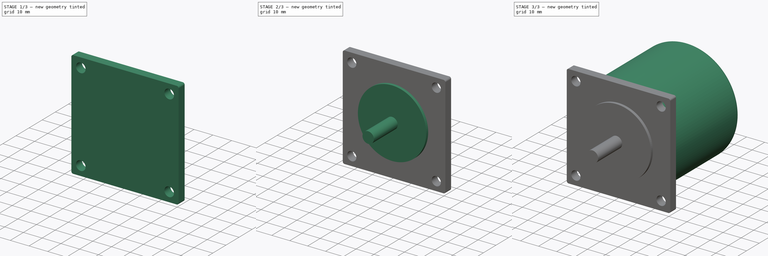
[diagram: build sequence overview — one tinted view per stage of 3, left to right]
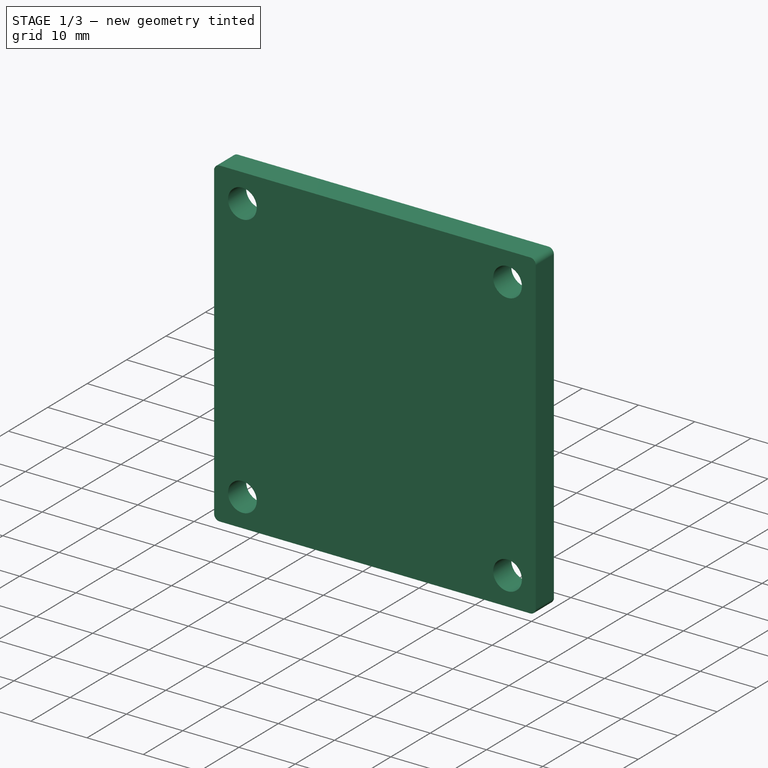
[diagram: stage 1 of 3 — iso view after this stage's code; geometry added in this stage tinted green]
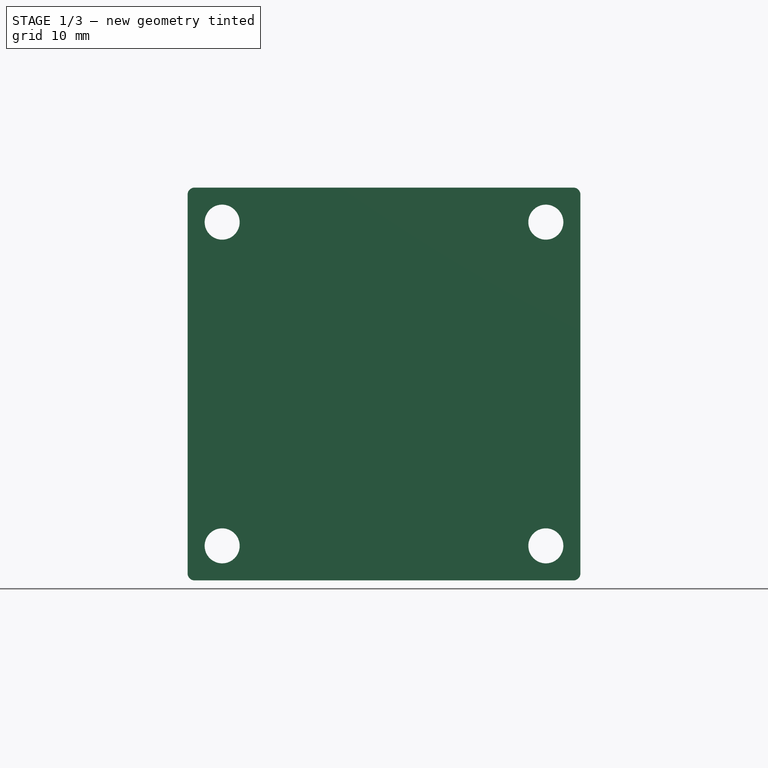
[diagram: stage 1 of 3 — front view after this stage's code; geometry added in this stage tinted green]
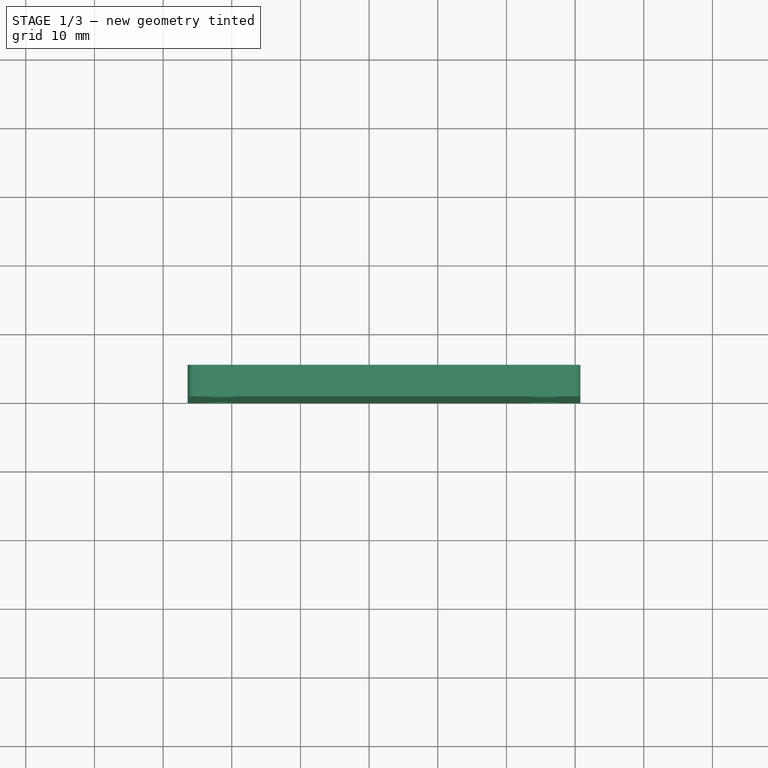
[diagram: stage 1 of 3 — top view after this stage's code; geometry added in this stage tinted green]
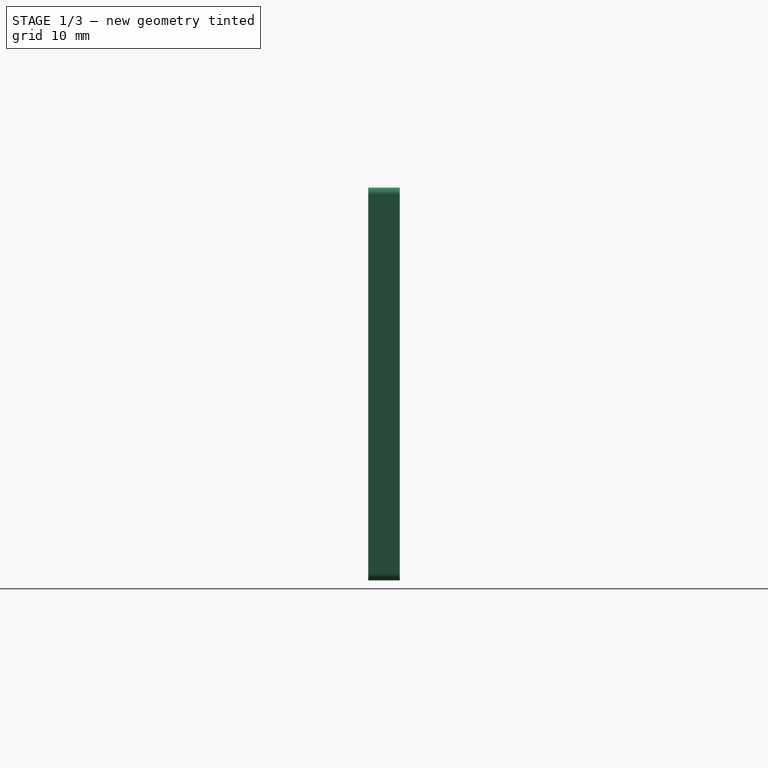
[diagram: stage 1 of 3 — right view after this stage's code; geometry added in this stage tinted green]
FCSTD DOCUMENT  (FreeCAD 0.15R3904 (Git))
Label: NEMA-23_Stepper_Motor
License: CC-BY 3.0
LicenseURL: http://creativecommons.org/licenses/by/3.0/
objects: Sketcher::SketchObject×5, PartDesign::Pad×4, Drawing::FeatureViewPart×3, PartDesign::Pocket×1, PartDesign::Fillet×1, App::DocumentObjectGroup×1, Drawing::FeaturePage×1
note: 16 computed .brp shape members not serialized (recipe doc carries the construction recipe); baked Part::Feature solids carry a one-line shape summary decoded from their .brp

FEATURE [Sketcher::SketchObject] Sketch
  Placement = pos=(1172.17,-95.4,57.8238) rot=(1,0,0;1.5708rad)
  sketch-geometry (8):
    g0: LineSegment StartX=-27.6 StartY=28.6 StartZ=0 EndX=27.6 EndY=28.6 EndZ=0
    g1: LineSegment StartX=28.6 StartY=27.6 StartZ=0 EndX=28.6 EndY=-27.6 EndZ=0
    g2: LineSegment StartX=27.6 StartY=-28.6 StartZ=0 EndX=-27.6 EndY=-28.6 EndZ=0
    g3: LineSegment StartX=-28.6 StartY=-27.6 StartZ=0 EndX=-28.6 EndY=27.6 EndZ=0
    g4: ArcOfCircle CenterX=27.6 CenterY=27.6 CenterZ=0 NormalX=0 NormalY=0 NormalZ=1 Radius=1 StartAngle=0 EndAngle=1.5708
    g5: ArcOfCircle CenterX=27.6 CenterY=-27.6 CenterZ=0 NormalX=0 NormalY=0 NormalZ=1 Radius=1 StartAngle=4.71239 EndAngle=6.28319
    g6: ArcOfCircle CenterX=-27.6 CenterY=-27.6 CenterZ=0 NormalX=0 NormalY=0 NormalZ=1 Radius=1 StartAngle=3.14159 EndAngle=4.71239
    g7: ArcOfCircle CenterX=-27.6 CenterY=27.6 CenterZ=0 NormalX=0 NormalY=0 NormalZ=1 Radius=1 StartAngle=1.5708 EndAngle=3.14159
  constraints (20):
    c: Horizontal(g0)
    c: Horizontal(g2)
    c: Vertical(g1)
    c: Vertical(g3)
    c: Tangent(g0,g4)
    c: Tangent(g1,g4)
    c: Tangent(g2,g5)
    c: Tangent(g1,g5)
    c: Tangent(g3,g6)
    c: Tangent(g2,g6)
    c: Tangent(g0,g7)
    c: Tangent(g3,g7)
    c: Equal(g4,g7)
    c: Equal(g7,g6)
    c: Equal(g6,g5)
    c: Radius(g4) = 1
    c: DistanceY(g0,g2) = -57.2
    c: DistanceX(g3,g1) = 57.2
    c: DistanceX(g-1,g3) = -28.6
    c: DistanceY(g-1,g2) = -28.6
FEATURE [PartDesign::Pad] Pad
  Length = 4.6
  Length2 = 100
  Placement = pos=(1172.17,-95.4,57.8238) rot=(1,0,0;1.5708rad)
  Sketch = -> Sketch
  Type = 0
FEATURE [Sketcher::SketchObject] Sketch001
  Placement = pos=(1172.17,-100,57.8238) rot=(1,0,0;1.5708rad)
  Support = -> Pad [Face10]
  sketch-geometry (4):
    g0: Circle CenterX=-23.57 CenterY=23.57 CenterZ=0 NormalX=0 NormalY=0 NormalZ=1 Radius=2.55
    g1: Circle CenterX=23.57 CenterY=23.57 CenterZ=0 NormalX=0 NormalY=0 NormalZ=1 Radius=2.55
    g2: Circle CenterX=-23.57 CenterY=-23.57 CenterZ=0 NormalX=0 NormalY=0 NormalZ=1 Radius=2.55
    g3: Circle CenterX=23.57 CenterY=-23.57 CenterZ=0 NormalX=0 NormalY=0 NormalZ=1 Radius=2.55
  constraints (12):
    c: Radius(g0) = 2.55
    c: Equal(g0,g2)
    c: Equal(g1,g3)
    c: DistanceY(g0,g2) = -47.14
    c: DistanceY(g3,g1) = 47.14
    c: DistanceX(g2,g3) = 47.14
    c: DistanceX(g0,g1) = 47.14
    c: DistanceX(g2,g0) = 0
    c: DistanceY(g3,g2) = 0
    c: DistanceX(g-1,g2) = -23.57
    c: DistanceY(g-1,g2) = -23.57
    c: Equal(g2,g3)
FEATURE [PartDesign::Pocket] Pocket
  Length = 5
  Placement = pos=(1172.17,-95.4,57.8238) rot=(1,0,0;1.5708rad)
  Sketch = -> Sketch001
  Type = 1
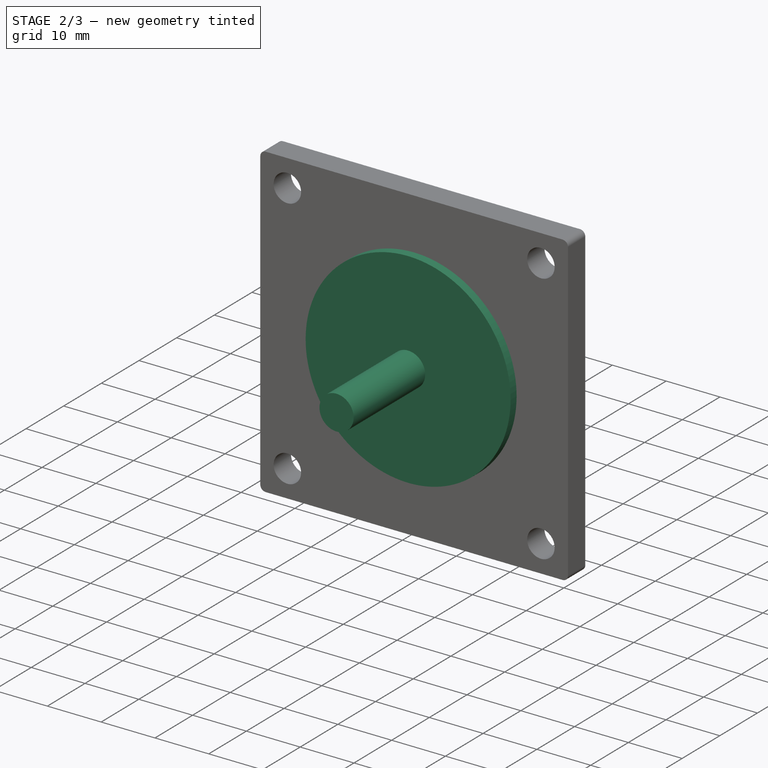
[diagram: stage 2 of 3 — iso view after this stage's code; geometry added in this stage tinted green]
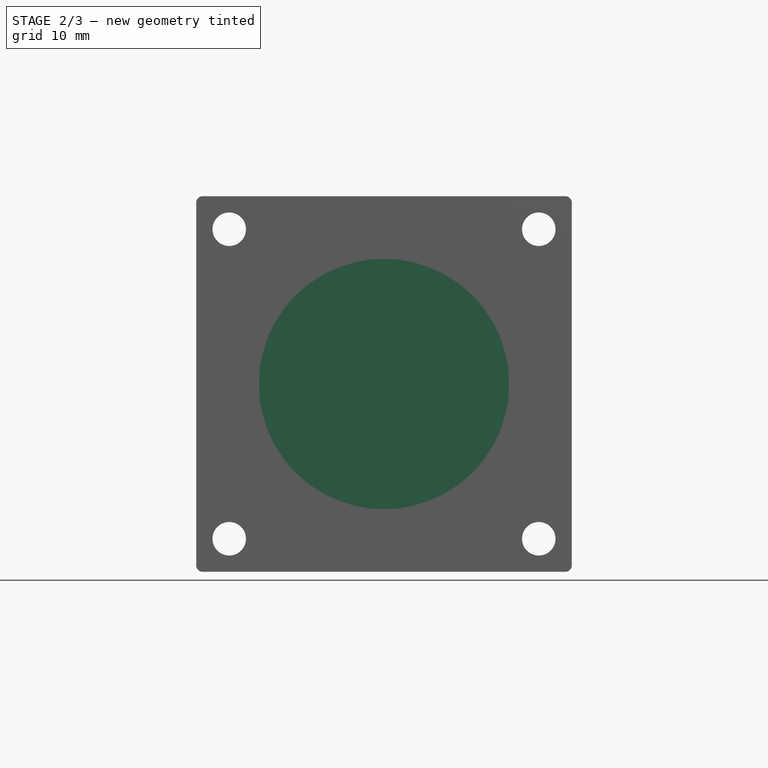
[diagram: stage 2 of 3 — front view after this stage's code; geometry added in this stage tinted green]
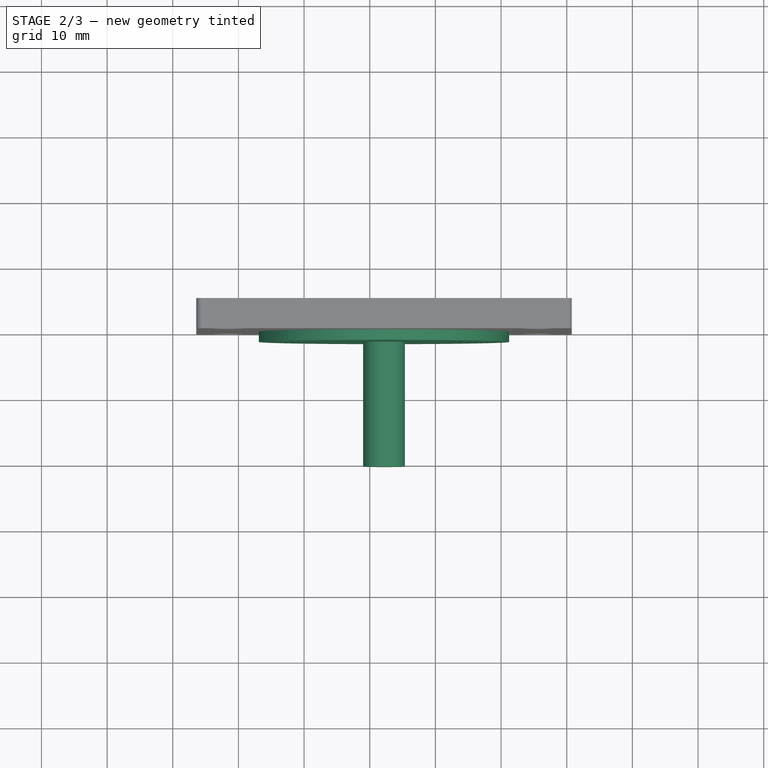
[diagram: stage 2 of 3 — top view after this stage's code; geometry added in this stage tinted green]
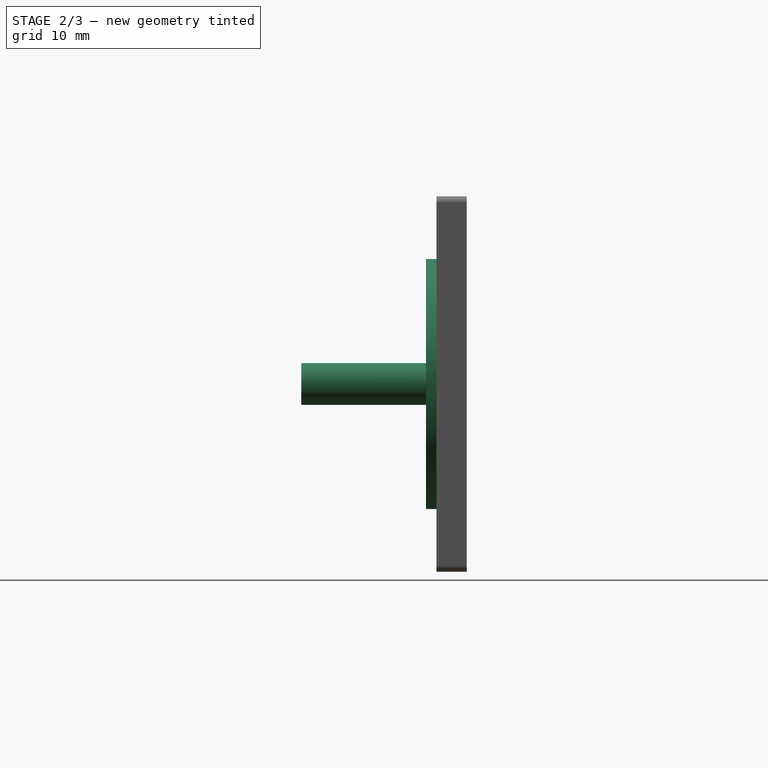
[diagram: stage 2 of 3 — right view after this stage's code; geometry added in this stage tinted green]
FEATURE [Sketcher::SketchObject] Sketch002
  Placement = pos=(1172.17,-100,57.8238) rot=(1,0,0;1.5708rad)
  Support = -> Pocket [Face5]
  sketch-geometry (1):
    g0: Circle CenterX=0 CenterY=0 CenterZ=0 NormalX=0 NormalY=0 NormalZ=1 Radius=19.05
  constraints (2):
    c: Coincident(g0,g-1)
    c: Radius(g0) = 19.05
FEATURE [PartDesign::Pad] Pad001
  Length = 1.6
  Length2 = 100
  Placement = pos=(1172.17,-95.4,57.8238) rot=(1,0,0;1.5708rad)
  Sketch = -> Sketch002
  Type = 0
FEATURE [Sketcher::SketchObject] Sketch003
  Placement = pos=(1172.17,-100,57.8238) rot=(1,0,0;1.5708rad)
  Support = -> Pad001 [Face5]
  sketch-geometry (1):
    g0: Circle CenterX=0 CenterY=0 CenterZ=0 NormalX=0 NormalY=0 NormalZ=1 Radius=3.175
  constraints (2):
    c: Coincident(g-1,g0)
    c: Radius(g0) = 3.175
FEATURE [PartDesign::Pad] Pad002
  Length = 20.6
  Length2 = 100
  Placement = pos=(1172.17,-95.4,57.8238) rot=(1,0,0;1.5708rad)
  Sketch = -> Sketch003
  Type = 0
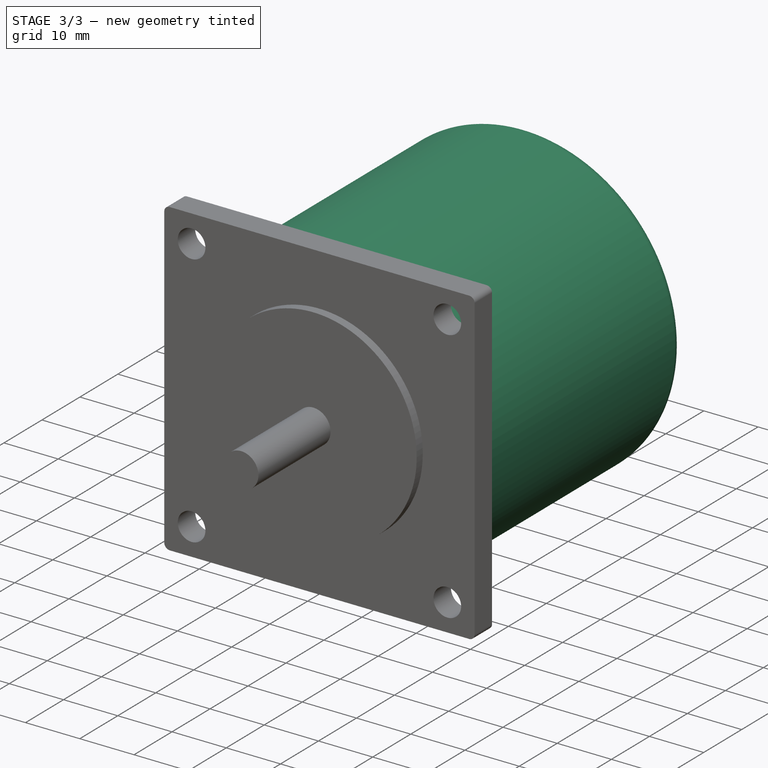
[diagram: stage 3 of 3 — iso view after this stage's code; geometry added in this stage tinted green]
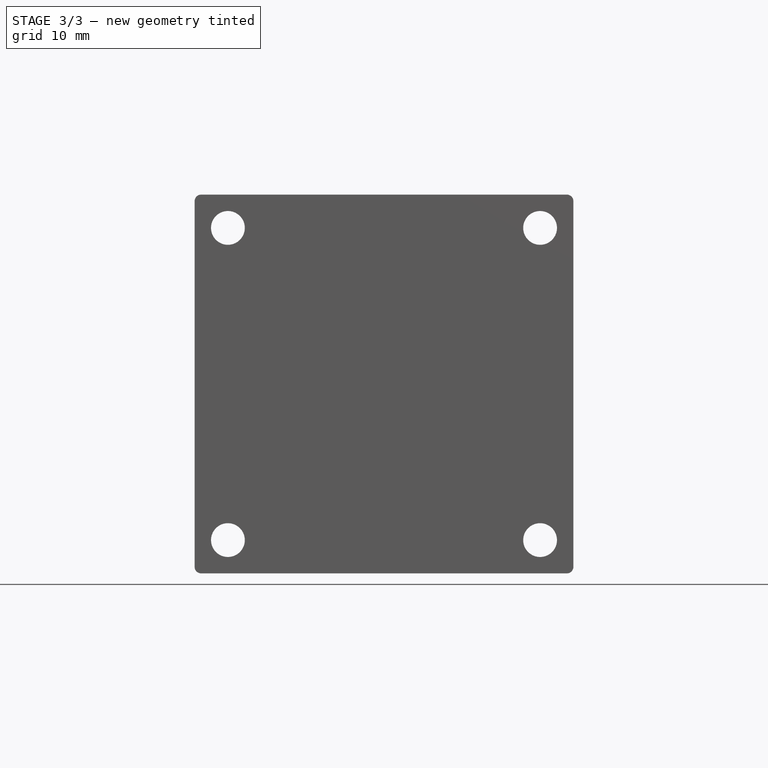
[diagram: stage 3 of 3 — front view after this stage's code; geometry added in this stage tinted green]
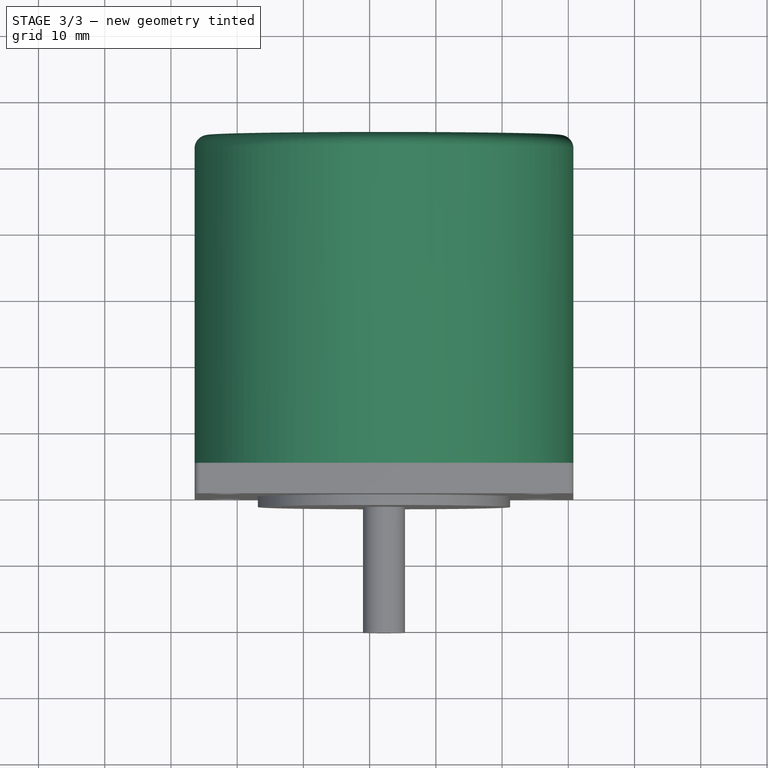
[diagram: stage 3 of 3 — top view after this stage's code; geometry added in this stage tinted green]
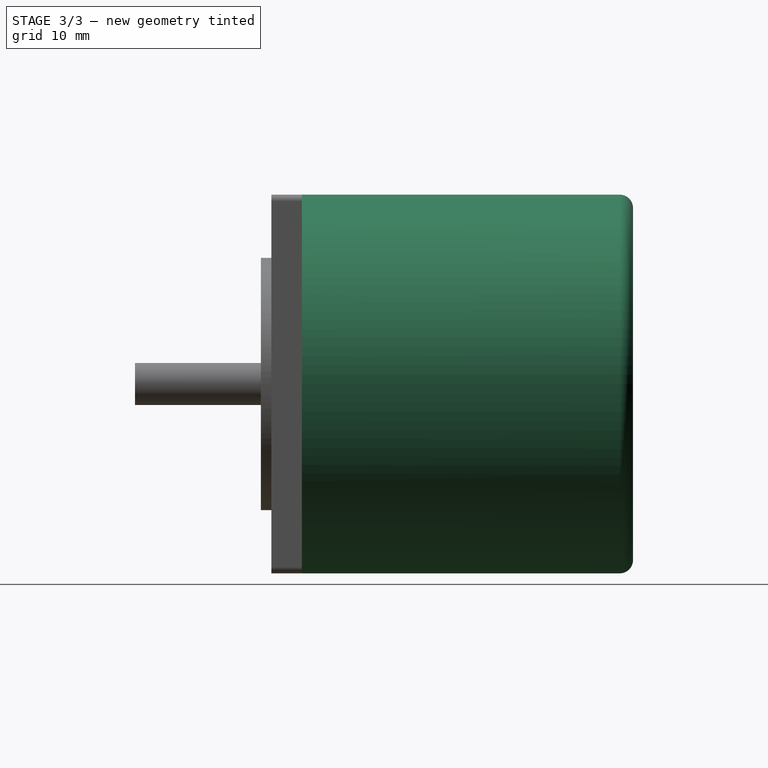
[diagram: stage 3 of 3 — right view after this stage's code; geometry added in this stage tinted green]
FEATURE [Sketcher::SketchObject] Sketch004
  Placement = pos=(1172.17,-95.4,57.8238) rot=(-1,0,0;1.5708rad)
  Support = -> Pad002 [Face4]
  sketch-geometry (1):
    g0: Circle CenterX=0 CenterY=0 CenterZ=0 NormalX=0 NormalY=0 NormalZ=1 Radius=28.6
  constraints (2):
    c: Coincident(g0,g-1)
    c: Radius(g0) = 28.6
FEATURE [PartDesign::Pad] Pad003
  Length = 50
  Length2 = 100
  Placement = pos=(1172.17,-95.4,57.8238) rot=(1,0,0;1.5708rad)
  Sketch = -> Sketch004
  Type = 0
FEATURE [PartDesign::Fillet] Fillet  label="Nema23Motor_part"
  Base = -> Pad003 [Edge37]
  Placement = pos=(1172.17,-95.4,57.8238) rot=(1,0,0;1.5708rad)
  Radius = 2
FEATURE [App::DocumentObjectGroup] Group  label="Nema23Motor"
  Group = -> [Pad,Pocket,Pad001,Pad002,Pad003,Fillet]
FEATURE [Drawing::FeatureViewPart] Ortho  label="Ortho_0_0"
  Direction = (1,0,0)
  HiddenWidth = 0.15
  LineWidth = 0.35
  Rotation = -90
  Scale = 0.75
  ShowHiddenLines = false
  ShowSmoothLines = false
  Source = -> Fillet
  Tolerance = 0.05
  ViewResult = <blob: 4804 chars omitted>
  X = 261.817
  Y = 155.851
FEATURE [Drawing::FeatureViewPart] Ortho001  label="Ortho_-1_1"
  Direction = (0.57735,-0.57735,0.57735)
  HiddenWidth = 0.15
  LineWidth = 0.35
  Rotation = -120
  Scale = 0.75
  ShowHiddenLines = false
  ShowSmoothLines = false
  Source = -> Fillet
  Tolerance = 0.05
  ViewResult = <blob: 4804 chars omitted>
  X = -486.937
  Y = -298.389
FEATURE [Drawing::FeatureViewPart] Ortho002  label="Ortho_-1_0"
  Direction = (0,-1,0)
  HiddenWidth = 0.15
  LineWidth = 0.35
  Rotation = 180
  Scale = 0.75
  ShowHiddenLines = false
  ShowSmoothLines = false
  Source = -> Fillet
  Tolerance = 0.05
  ViewResult = <g id="Ortho_-1_0"\n   transform="rotate(180,-788.444,155.851) translate(-788.444,155.851) scale(0.75,0.75)"\n  >\n<g   stroke="rgb(0, 0, 0)"\n   stroke-width="0.466667"\n   stroke-linecap="butt"\n   stroke-linejoin="miter"\n   fill="none"\n   transform="scale(1,-1)"\n  >\n<path d="M-1172.17 -86.4238 A28.6 28.6 0 0 0 -1200.77 -57.8238" /><path id= "2" d=" M -1144.57 -86.4238 L -1199.77 -86.4238 " />\n<path d="M-1200.77 -85.4238 A1 1 0 0 1 -1199.77 -86.4238" /><path id= "4" d=" M -1200.77 -85.4238 L -1200.77 -30.2238 " />\n<circle cx ="-1195.74" cy ="-81.3938" r ="2.55" /><path id= "6" d=" M -1143.57 -30.2238 L -1143.57 -85.4238 " />\n<path d="M-1144.57 -86.4238 A1 1 0 0 1 -1143.57 -85.4238" /><circle cx ="-1148.6" cy ="-81.3938" r ="2.55" /><path d="M-1199.77 -29.2238 A1 1 0 0 1 -1200.77 -30.2238" /><path id= "10" d=" M -1199.77 -29.2238 L -1144.57 -29.2238 " />\n<circle cx ="-1195.74" cy ="-34.2538" r ="2.55" /><path d="M-1143.57 -30.2238 A1 1 0 0 1 -1144.57 -29.2238" /><circle cx ="-1148.6" cy ="-34.2538" r ="2.55" /><circle cx ="-1172.17" cy ="-57.8238" r ="19.05" /><circle cx ="-1172.17" cy ="-57.8238" r ="19.05" /><circle cx ="-1172.17" cy ="-57.8238" r ="3.175" /></g>\n</g>
  X = -788.444
  Y = 155.851
FEATURE [Drawing::FeaturePage] Page
  EditableTexts = Michael G. Hansen | 2014-09-11 | 0.75 | Weight | NEMA-23 stepper motor
  Group = -> [Ortho,Ortho001,Ortho002]
  Template = <path>
note: 1 file-system path scrubbed to <path> (originals preserved in the JSON sidecar)
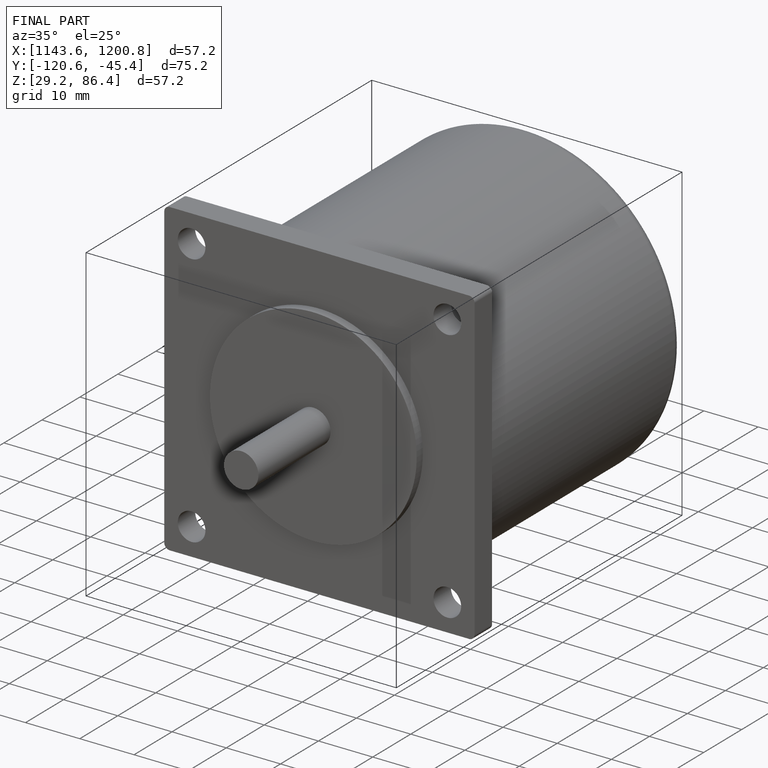
[diagram: finished part — iso view with bounding-box wireframe]
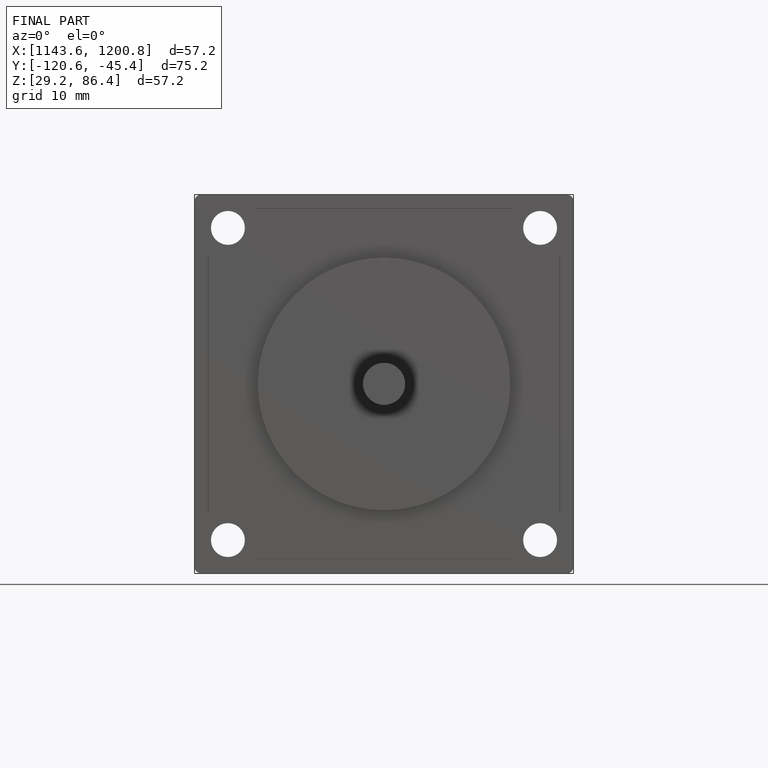
[diagram: finished part — front view with bounding-box wireframe]
